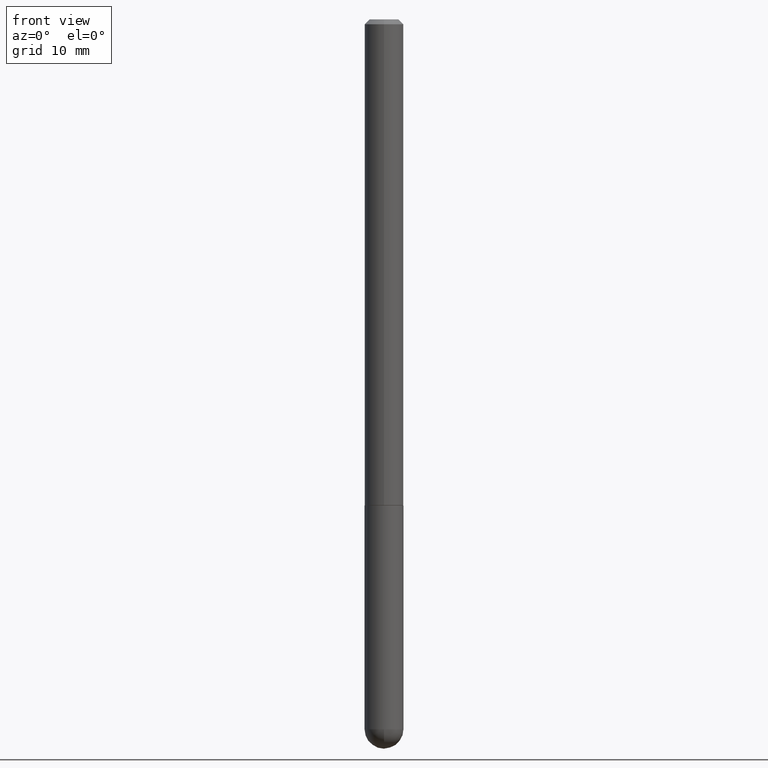
[diagram: clean part render]
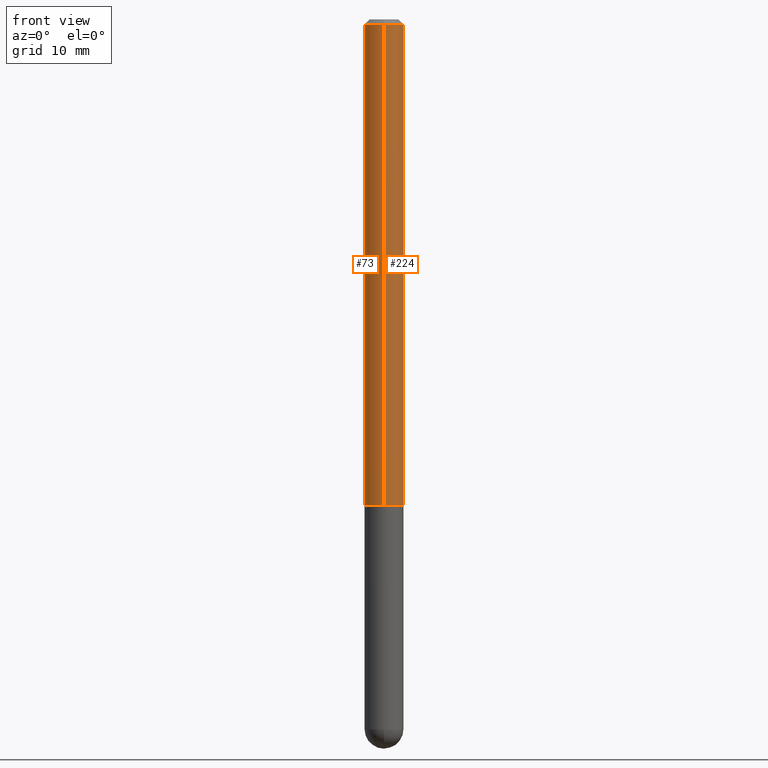
[diagram: same view with one multi-face feature highlighted, each face labeled with its STEP entity id]
A machine part, front view. The highlighted faces form ONE feature: a constant-radius fillet chain: 2 tangent blend faces with common blend radius 2.0003 mm. The faces share edges in the B-rep.
Their STEP definitions:
[1] entity #73 (Cylinder):
#4 = EDGE_CURVE ( 'NONE', #45, #74, #377, .T. ) ;
#20 = AXIS2_PLACEMENT_3D ( 'NONE', #188, #355, #315 ) ;
#29 = EDGE_CURVE ( 'NONE', #350, #393, #64, .T. ) ;
#34 = CARTESIAN_POINT ( 'NONE',  ( 5.499083108677938387E-16, 0.07874999999999993117, -0.02000000000000029185 ) ) ;
#41 = CARTESIAN_POINT ( 'NONE',  ( 4.825502781678292621E-29, -6.849379294212400691E-15, -1.967499999999999805 ) ) ;
#45 = VERTEX_POINT ( 'NONE', #34 ) ;
#64 = CIRCLE ( 'NONE', #103, 0.07875000000000019484 ) ;
#73 = ADVANCED_FACE ( 'NONE', ( #277 ), #307, .T. ) ;
#74 = VERTEX_POINT ( 'NONE', #89 ) ;
#83 = ORIENTED_EDGE ( 'NONE', *, *, #124, .T. ) ;
#87 = DIRECTION ( 'NONE',  ( -2.452606242276134078E-29, 3.481260124123204048E-15, 1.000000000000000000 ) ) ;
#89 = CARTESIAN_POINT ( 'NONE',  ( -5.402642173245075938E-16, -0.07875000000000006994, -0.01999999999999974368 ) ) ;
#90 = AXIS2_PLACEMENT_3D ( 'NONE', #155, #238, #313 ) ;
#95 = DIRECTION ( 'NONE',  ( -2.452606242276133797E-29, 3.481260124123203654E-15, 1.000000000000000000 ) ) ;
#103 = AXIS2_PLACEMENT_3D ( 'NONE', #41, #95, #351 ) ;
#106 = ORIENTED_EDGE ( 'NONE', *, *, #29, .T. ) ;
#110 = CARTESIAN_POINT ( 'NONE',  ( 5.595524044110794920E-16, 0.07875000000000009770, -2.741492347747026245E-16 ) ) ;
#124 = EDGE_CURVE ( 'NONE', #393, #74, #178, .T. ) ;
#130 = CARTESIAN_POINT ( 'NONE',  ( 5.595524044111042425E-16, 0.07874999999999335309, -1.967500000000000027 ) ) ;
#155 = CARTESIAN_POINT ( 'NONE',  ( 0.000000000000000000, 0.000000000000000000, 0.000000000000000000 ) ) ;
#162 = VECTOR ( 'NONE', #401, 39.37007874015748143 ) ;
#173 = EDGE_CURVE ( 'NONE', #350, #45, #403, .T. ) ;
#178 = LINE ( 'NONE', #409, #162 ) ;
#187 = CARTESIAN_POINT ( 'NONE',  ( -5.499083108677465071E-16, -0.07875000000000705047, -1.967499999999999361 ) ) ;
#188 = CARTESIAN_POINT ( 'NONE',  ( 4.905212484552271764E-31, -6.962520248246412533E-17, -0.02000000000000001776 ) ) ;
#234 = ORIENTED_EDGE ( 'NONE', *, *, #173, .F. ) ;
#238 = DIRECTION ( 'NONE',  ( -2.452606242276133797E-29, 3.481260124123203654E-15, 1.000000000000000000 ) ) ;
#253 = ORIENTED_EDGE ( 'NONE', *, *, #4, .F. ) ;
#277 = FACE_OUTER_BOUND ( 'NONE', #374, .T. ) ;
#307 = CYLINDRICAL_SURFACE ( 'NONE', #90, 0.07875000000000009770 ) ;
#313 = DIRECTION ( 'NONE',  ( -6.982962677686265922E-15, -1.000000000000000000, 3.481260124123203654E-15 ) ) ;
#314 = VECTOR ( 'NONE', #87, 39.37007874015748143 ) ;
#315 = DIRECTION ( 'NONE',  ( -6.982962677686264344E-15, -1.000000000000000000, 3.469013325287953293E-15 ) ) ;
#350 = VERTEX_POINT ( 'NONE', #130 ) ;
#351 = DIRECTION ( 'NONE',  ( -6.982962677686265922E-15, -1.000000000000000000, 3.469013325287944616E-15 ) ) ;
#355 = DIRECTION ( 'NONE',  ( -2.452606242276133797E-29, 3.481260124123203654E-15, 1.000000000000000000 ) ) ;
#374 = EDGE_LOOP ( 'NONE', ( #234, #106, #83, #253 ) ) ;
#377 = CIRCLE ( 'NONE', #20, 0.07875000000000000056 ) ;
#393 = VERTEX_POINT ( 'NONE', #187 ) ;
#401 = DIRECTION ( 'NONE',  ( -2.452606242276134078E-29, 3.481260124123204048E-15, 1.000000000000000000 ) ) ;
#403 = LINE ( 'NONE', #110, #314 ) ;
#409 = CARTESIAN_POINT ( 'NONE',  ( -5.499083108677941345E-16, -0.07875000000000009770, 2.741492347747026245E-16 ) ) ;
[2] entity #224 (Cylinder):
#26 = DIRECTION ( 'NONE',  ( -2.452606242276133797E-29, 3.481260124123203654E-15, 1.000000000000000000 ) ) ;
#34 = CARTESIAN_POINT ( 'NONE',  ( 5.499083108677938387E-16, 0.07874999999999993117, -0.02000000000000029185 ) ) ;
#45 = VERTEX_POINT ( 'NONE', #34 ) ;
#48 = ORIENTED_EDGE ( 'NONE', *, *, #173, .T. ) ;
#74 = VERTEX_POINT ( 'NONE', #89 ) ;
#87 = DIRECTION ( 'NONE',  ( -2.452606242276134078E-29, 3.481260124123204048E-15, 1.000000000000000000 ) ) ;
#89 = CARTESIAN_POINT ( 'NONE',  ( -5.402642173245075938E-16, -0.07875000000000006994, -0.01999999999999974368 ) ) ;
#110 = CARTESIAN_POINT ( 'NONE',  ( 5.595524044110794920E-16, 0.07875000000000009770, -2.741492347747026245E-16 ) ) ;
#116 = DIRECTION ( 'NONE',  ( -6.982962677686264344E-15, -1.000000000000000000, 3.469013325287953293E-15 ) ) ;
#119 = EDGE_CURVE ( 'NONE', #393, #350, #278, .T. ) ;
#123 = ORIENTED_EDGE ( 'NONE', *, *, #119, .T. ) ;
#124 = EDGE_CURVE ( 'NONE', #393, #74, #178, .T. ) ;
#127 = AXIS2_PLACEMENT_3D ( 'NONE', #209, #376, #336 ) ;
#130 = CARTESIAN_POINT ( 'NONE',  ( 5.595524044111042425E-16, 0.07874999999999335309, -1.967500000000000027 ) ) ;
#158 = DIRECTION ( 'NONE',  ( -2.452606242276133797E-29, 3.481260124123203654E-15, 1.000000000000000000 ) ) ;
#162 = VECTOR ( 'NONE', #401, 39.37007874015748143 ) ;
#173 = EDGE_CURVE ( 'NONE', #350, #45, #403, .T. ) ;
#177 = AXIS2_PLACEMENT_3D ( 'NONE', #306, #26, #116 ) ;
#178 = LINE ( 'NONE', #409, #162 ) ;
#187 = CARTESIAN_POINT ( 'NONE',  ( -5.499083108677465071E-16, -0.07875000000000705047, -1.967499999999999361 ) ) ;
#209 = CARTESIAN_POINT ( 'NONE',  ( 0.000000000000000000, 0.000000000000000000, 0.000000000000000000 ) ) ;
#210 = EDGE_LOOP ( 'NONE', ( #123, #48, #297, #266 ) ) ;
#224 = ADVANCED_FACE ( 'NONE', ( #375 ), #237, .T. ) ;
#237 = CYLINDRICAL_SURFACE ( 'NONE', #127, 0.07875000000000009770 ) ;
#258 = EDGE_CURVE ( 'NONE', #74, #45, #294, .T. ) ;
#266 = ORIENTED_EDGE ( 'NONE', *, *, #124, .F. ) ;
#278 = CIRCLE ( 'NONE', #384, 0.07875000000000019484 ) ;
#294 = CIRCLE ( 'NONE', #177, 0.07875000000000000056 ) ;
#297 = ORIENTED_EDGE ( 'NONE', *, *, #258, .F. ) ;
#306 = CARTESIAN_POINT ( 'NONE',  ( 4.905212484552271764E-31, -6.962520248246412533E-17, -0.02000000000000001776 ) ) ;
#314 = VECTOR ( 'NONE', #87, 39.37007874015748143 ) ;
#336 = DIRECTION ( 'NONE',  ( -6.982962677686265922E-15, -1.000000000000000000, 3.481260124123203654E-15 ) ) ;
#350 = VERTEX_POINT ( 'NONE', #130 ) ;
#375 = FACE_OUTER_BOUND ( 'NONE', #210, .T. ) ;
#376 = DIRECTION ( 'NONE',  ( -2.452606242276133797E-29, 3.481260124123203654E-15, 1.000000000000000000 ) ) ;
#380 = DIRECTION ( 'NONE',  ( -6.982962677686265922E-15, -1.000000000000000000, 3.469013325287944616E-15 ) ) ;
#384 = AXIS2_PLACEMENT_3D ( 'NONE', #412, #158, #380 ) ;
#393 = VERTEX_POINT ( 'NONE', #187 ) ;
#401 = DIRECTION ( 'NONE',  ( -2.452606242276134078E-29, 3.481260124123204048E-15, 1.000000000000000000 ) ) ;
#403 = LINE ( 'NONE', #110, #314 ) ;
#409 = CARTESIAN_POINT ( 'NONE',  ( -5.499083108677941345E-16, -0.07875000000000009770, 2.741492347747026245E-16 ) ) ;
#412 = CARTESIAN_POINT ( 'NONE',  ( 4.825502781678292621E-29, -6.849379294212400691E-15, -1.967499999999999805 ) ) ;